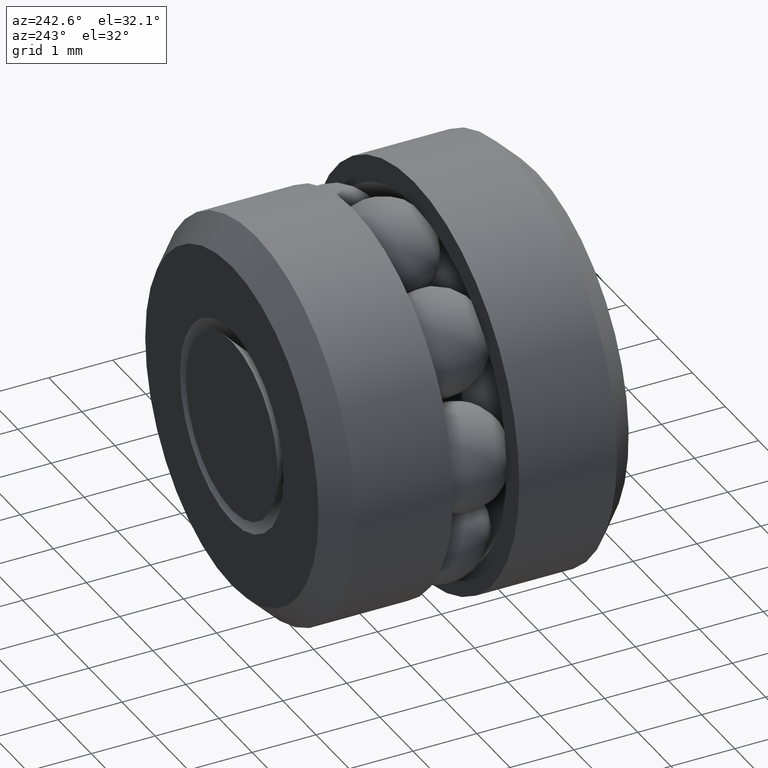
[diagram: clean part render]
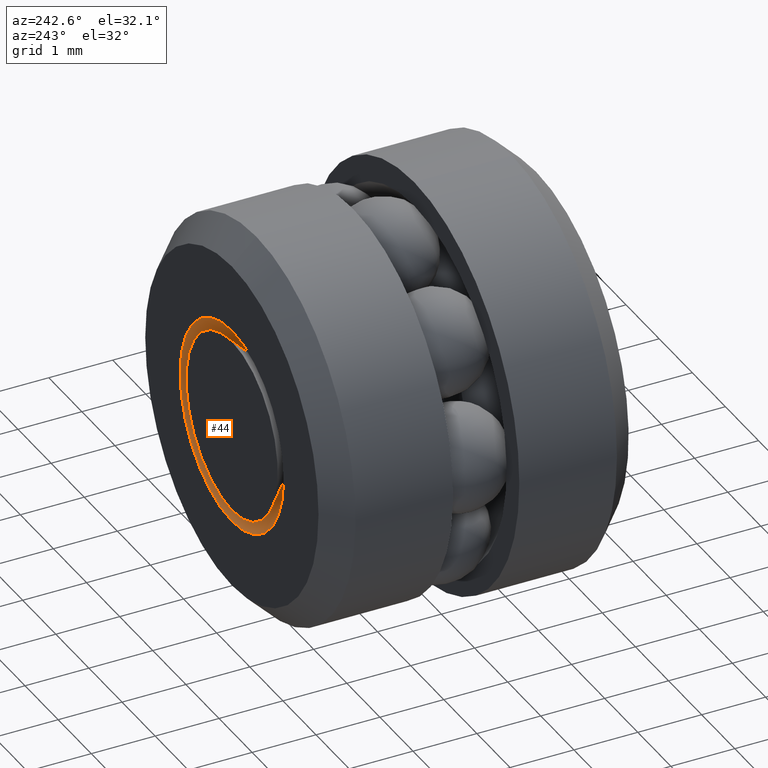
[diagram: same view with one face highlighted and labeled with its STEP entity id]
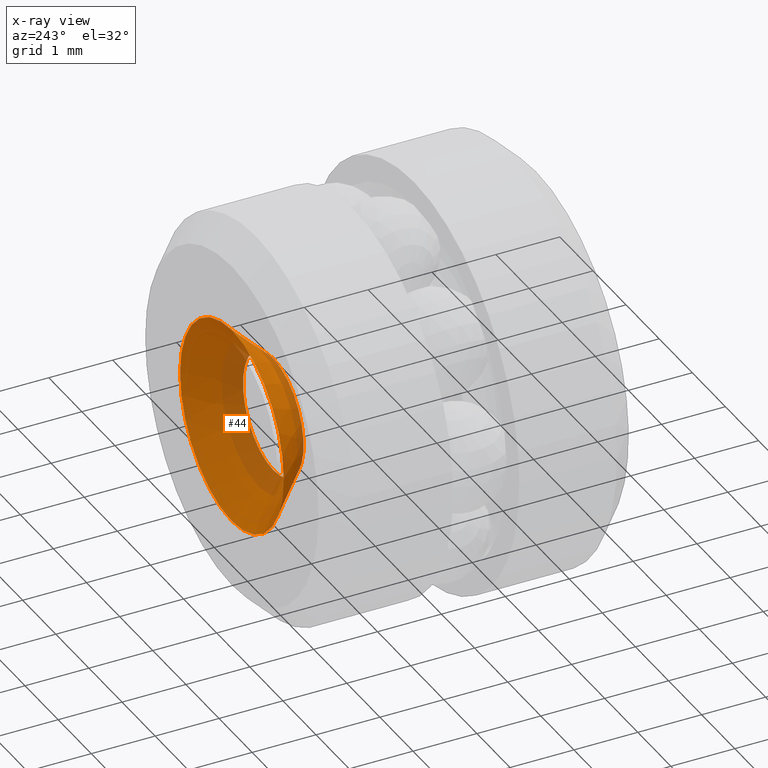
[diagram: x-ray of the same camera — body ghosted, the highlighted face saturated]
A machine part, auxiliary view. The second image highlights one B-rep face of the part: STEP entity #44.
The next image is the same camera in x-ray: the body ghosted, the highlighted face saturated — about 25% of this face is hidden behind the body in this view.
In plain terms, the highlighted conical surface has half-angle 45 deg.
Its self-contained STEP definition (entity closure, byte-faithful):
#32 = FACE_OUTER_BOUND ( 'NONE', #60, .T. ) ;
#44 = ADVANCED_FACE ( 'NONE', ( #32, #413 ), #188, .F. ) ;
#60 = EDGE_LOOP ( 'NONE', ( #119 ) ) ;
#119 = ORIENTED_EDGE ( 'NONE', *, *, #259, .T. ) ;
#146 = CIRCLE ( 'NONE', #437, 0.03600000000000000400 ) ;
#149 = DIRECTION ( 'NONE',  ( -0.0000000000000000000, 1.000000000000000000, -0.0000000000000000000 ) ) ;
#152 = CARTESIAN_POINT ( 'NONE',  ( 0.0000000000000000000, 0.1619914321881346400, 0.0000000000000000000 ) ) ;
#156 = VERTEX_POINT ( 'NONE', #428 ) ;
#188 = CONICAL_SURFACE ( 'NONE', #542, 0.03600000000000000400, 0.7853981633974409500 ) ;
#195 = CARTESIAN_POINT ( 'NONE',  ( 0.0000000000000000000, 0.1619914321881346400, 0.0000000000000000000 ) ) ;
#226 = EDGE_CURVE ( 'NONE', #156, #156, #146, .T. ) ;
#227 = DIRECTION ( 'NONE',  ( -0.0000000000000000000, 1.000000000000000000, -0.0000000000000000000 ) ) ;
#253 = AXIS2_PLACEMENT_3D ( 'NONE', #305, #227, #526 ) ;
#259 = EDGE_CURVE ( 'NONE', #435, #435, #467, .T. ) ;
#274 = DIRECTION ( 'NONE',  ( -0.0000000000000000000, 1.000000000000000000, -0.0000000000000000000 ) ) ;
#305 = CARTESIAN_POINT ( 'NONE',  ( 0.0000000000000000000, 0.1875000000000001100, 0.0000000000000000000 ) ) ;
#382 = CARTESIAN_POINT ( 'NONE',  ( 0.0000000000000000000, 0.1875000000000001100, 0.06150856781186511000 ) ) ;
#413 = FACE_BOUND ( 'NONE', #443, .T. ) ;
#428 = CARTESIAN_POINT ( 'NONE',  ( 0.0000000000000000000, 0.1619914321881346400, 0.03600000000000000400 ) ) ;
#435 = VERTEX_POINT ( 'NONE', #382 ) ;
#437 = AXIS2_PLACEMENT_3D ( 'NONE', #152, #274, #539 ) ;
#443 = EDGE_LOOP ( 'NONE', ( #505 ) ) ;
#451 = DIRECTION ( 'NONE',  ( 0.0000000000000000000, 0.0000000000000000000, 1.000000000000000000 ) ) ;
#467 = CIRCLE ( 'NONE', #253, 0.06150856781186511000 ) ;
#505 = ORIENTED_EDGE ( 'NONE', *, *, #226, .F. ) ;
#526 = DIRECTION ( 'NONE',  ( 0.0000000000000000000, 0.0000000000000000000, 1.000000000000000000 ) ) ;
#539 = DIRECTION ( 'NONE',  ( 0.0000000000000000000, 0.0000000000000000000, 1.000000000000000000 ) ) ;
#542 = AXIS2_PLACEMENT_3D ( 'NONE', #195, #149, #451 ) ;